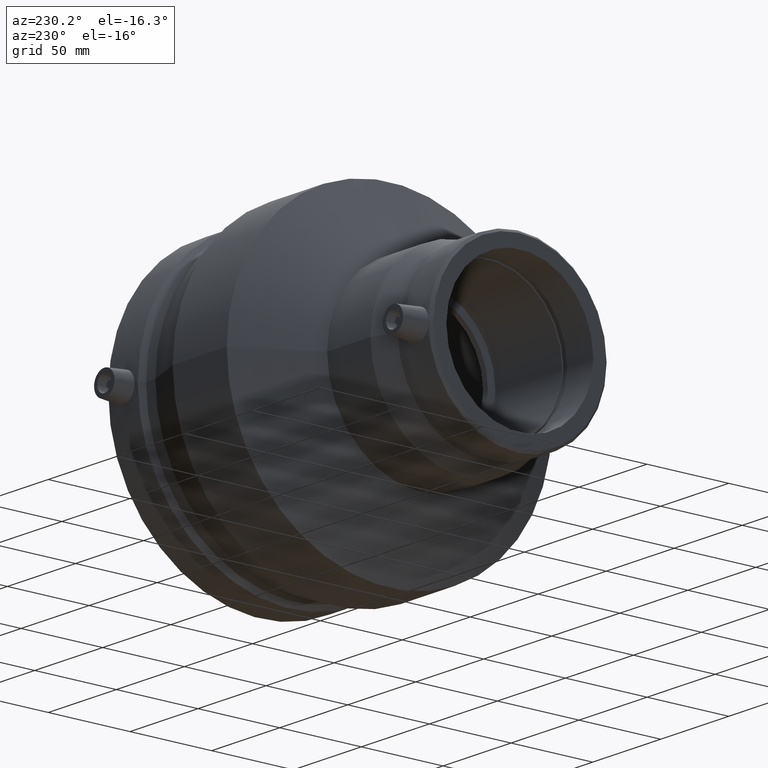
[diagram: clean part render]
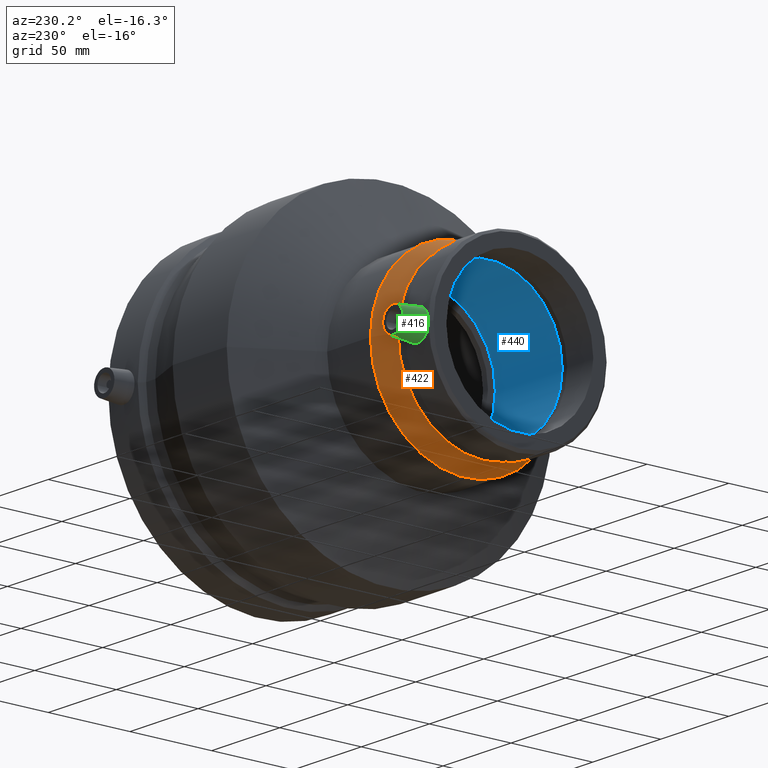
[diagram: same view with three faces highlighted in distinct colors, each labeled with its STEP entity id]
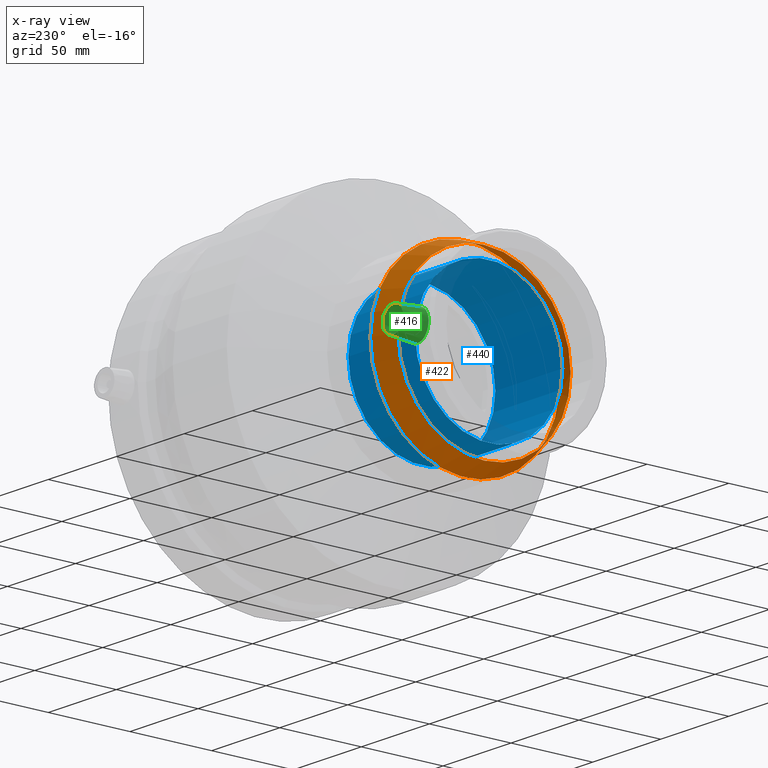
[diagram: x-ray of the same camera — body ghosted, the three highlighted faces saturated]
A machine part, auxiliary view with three faces highlighted in distinct colors.
The next image is the same camera in x-ray (body ghosted, the three faces saturated) — at least one of them is partly hidden behind the body in this view.
Their STEP definitions:

[orange] entity #422 — the highlighted conical surface has half-angle 20 deg.
#21=CONICAL_SURFACE('',#479,55.4422,20.);
#45=FACE_BOUND('',#156,.T.);
#100=FACE_OUTER_BOUND('',#155,.T.);
#155=EDGE_LOOP('',(#348));
#156=EDGE_LOOP('',(#349));
#215=CIRCLE('',#478,52.8844);
#216=CIRCLE('',#480,58.);
#254=VERTEX_POINT('',#794);
#255=VERTEX_POINT('',#797);
#293=EDGE_CURVE('',#254,#254,#215,.T.);
#294=EDGE_CURVE('',#255,#255,#216,.T.);
#348=ORIENTED_EDGE('',*,*,#293,.T.);
#349=ORIENTED_EDGE('',*,*,#294,.F.);
#422=ADVANCED_FACE('',(#100,#45),#21,.T.);
#478=AXIS2_PLACEMENT_3D('',#795,#588,#589);
#479=AXIS2_PLACEMENT_3D('',#796,#590,#591);
#480=AXIS2_PLACEMENT_3D('',#798,#592,#593);
#588=DIRECTION('center_axis',(1.,0.,0.));
#589=DIRECTION('ref_axis',(0.,0.,-1.));
#590=DIRECTION('center_axis',(1.,0.,0.));
#591=DIRECTION('ref_axis',(0.,1.,0.));
#592=DIRECTION('center_axis',(1.,0.,0.));
#593=DIRECTION('ref_axis',(0.,0.,-1.));
#794=CARTESIAN_POINT('',(-70.4,52.8844,0.));
#795=CARTESIAN_POINT('Origin',(-70.4,0.,0.));
#796=CARTESIAN_POINT('Origin',(-63.3725022565189,0.,0.));
#797=CARTESIAN_POINT('',(-56.3450045130379,58.,0.));
#798=CARTESIAN_POINT('Origin',(-56.3450045130379,0.,0.));

[blue] entity #440 — the highlighted cylindrical surface (bore or boss wall) has radius 45 mm, axis along (1, 0, 0).
#64=FACE_BOUND('',#193,.T.);
#81=CYLINDRICAL_SURFACE('',#515,45.);
#118=FACE_OUTER_BOUND('',#192,.T.);
#192=EDGE_LOOP('',(#385));
#193=EDGE_LOOP('',(#386));
#233=CIRCLE('',#514,45.);
#234=CIRCLE('',#516,45.);
#272=VERTEX_POINT('',#848);
#273=VERTEX_POINT('',#851);
#311=EDGE_CURVE('',#272,#272,#233,.T.);
#312=EDGE_CURVE('',#273,#273,#234,.T.);
#385=ORIENTED_EDGE('',*,*,#311,.T.);
#386=ORIENTED_EDGE('',*,*,#312,.F.);
#440=ADVANCED_FACE('',(#118,#64),#81,.F.);
#514=AXIS2_PLACEMENT_3D('',#849,#660,#661);
#515=AXIS2_PLACEMENT_3D('',#850,#662,#663);
#516=AXIS2_PLACEMENT_3D('',#852,#664,#665);
#660=DIRECTION('center_axis',(1.,0.,0.));
#661=DIRECTION('ref_axis',(0.,0.,-1.));
#662=DIRECTION('center_axis',(1.,0.,0.));
#663=DIRECTION('ref_axis',(0.,1.,0.));
#664=DIRECTION('center_axis',(1.,0.,0.));
#665=DIRECTION('ref_axis',(0.,0.,-1.));
#848=CARTESIAN_POINT('',(-24.5,45.,0.));
#849=CARTESIAN_POINT('Origin',(-24.5,0.,0.));
#850=CARTESIAN_POINT('Origin',(-49.0778,0.,0.));
#851=CARTESIAN_POINT('',(-73.6556,45.,0.));
#852=CARTESIAN_POINT('Origin',(-73.6556,0.,0.));

[green] entity #416 — the highlighted conical surface has half-angle 5 deg.
#16=B_SPLINE_CURVE_WITH_KNOTS('',3,(#745,#746,#747,#748,#749,#750,#751,
#752,#753,#754,#755,#756,#757,#758,#759,#760,#761,#762,#763,#764,#765,#766,
#767,#768,#769,#770,#771,#772,#773,#774,#775,#776,#777,#778),
 .UNSPECIFIED.,.T.,.F.,(4,2,2,2,2,2,2,2,2,2,2,2,2,2,2,2,4),(0.,0.332333741247595,
0.66466748249519,0.996440568725009,1.32821365495483,1.65998674118465,1.99175982741447,
2.32409356866206,2.65642730990966,2.98876105115725,3.32109479240485,3.65286787863466,
3.98464096486448,4.3164140510943,4.64818713732412,4.98052087857172,5.31285461981931),
 .UNSPECIFIED.);
#18=CONICAL_SURFACE('',#467,7.5,5.);
#38=FACE_BOUND('',#143,.T.);
#94=FACE_OUTER_BOUND('',#142,.T.);
#142=EDGE_LOOP('',(#335));
#143=EDGE_LOOP('',(#336));
#209=CIRCLE('',#466,7.5);
#247=VERTEX_POINT('',#741);
#248=VERTEX_POINT('',#744);
#286=EDGE_CURVE('',#247,#247,#209,.T.);
#287=EDGE_CURVE('',#248,#248,#16,.T.);
#335=ORIENTED_EDGE('',*,*,#286,.T.);
#336=ORIENTED_EDGE('',*,*,#287,.F.);
#416=ADVANCED_FACE('',(#94,#38),#18,.T.);
#466=AXIS2_PLACEMENT_3D('',#742,#564,#565);
#467=AXIS2_PLACEMENT_3D('',#743,#566,#567);
#564=DIRECTION('center_axis',(0.,-1.,0.));
#565=DIRECTION('ref_axis',(1.,0.,0.));
#566=DIRECTION('center_axis',(0.,-1.,0.));
#567=DIRECTION('ref_axis',(1.,0.,0.));
#741=CARTESIAN_POINT('',(-93.56,69.,9.18485099360515E-16));
#742=CARTESIAN_POINT('Origin',(-86.06,69.,0.));
#743=CARTESIAN_POINT('Origin',(-86.06,69.,0.));
#744=CARTESIAN_POINT('',(-86.06,53.8002314175975,-8.82980743917773));
#745=CARTESIAN_POINT('Ctrl Pts',(-86.06,53.8002314175975,-8.82980743917773));
#746=CARTESIAN_POINT('Ctrl Pts',(-84.952220862508,53.8002314175975,-8.82980743917773));
#747=CARTESIAN_POINT('Ctrl Pts',(-83.7729472365642,53.8385416765224,-8.60537039430469));
#748=CARTESIAN_POINT('Ctrl Pts',(-81.6088154801086,53.9757610206859,-7.69793399206916));
#749=CARTESIAN_POINT('Ctrl Pts',(-80.6237588182109,54.0725767138485,-7.01509277897696));
#750=CARTESIAN_POINT('Ctrl Pts',(-79.0726566950116,54.2530518909631,-5.44603835548629));
#751=CARTESIAN_POINT('Ctrl Pts',(-78.4018229272728,54.3485422744313,-4.45511903941445));
#752=CARTESIAN_POINT('Ctrl Pts',(-77.512041944967,54.4829361529317,-2.28512600912968));
#753=CARTESIAN_POINT('Ctrl Pts',(-77.2931641521446,54.52,-1.10591028743273));
#754=CARTESIAN_POINT('Ctrl Pts',(-77.2931641521446,54.52,1.10591028743273));
#755=CARTESIAN_POINT('Ctrl Pts',(-77.512041944967,54.4829361529317,2.28512600912968));
#756=CARTESIAN_POINT('Ctrl Pts',(-78.4018229272728,54.3485422744313,4.45511903941445));
#757=CARTESIAN_POINT('Ctrl Pts',(-79.0726566950116,54.2530518909631,5.44603835548629));
#758=CARTESIAN_POINT('Ctrl Pts',(-80.6237588182109,54.0725767138485,7.01509277897696));
#759=CARTESIAN_POINT('Ctrl Pts',(-81.6088154801086,53.9757610206859,7.69793399206916));
#760=CARTESIAN_POINT('Ctrl Pts',(-83.7729472365642,53.8385416765224,8.60537039430469));
#761=CARTESIAN_POINT('Ctrl Pts',(-84.952220862508,53.8002314175975,8.82980743917773));
#762=CARTESIAN_POINT('Ctrl Pts',(-87.167779137492,53.8002314175975,8.82980743917773));
#763=CARTESIAN_POINT('Ctrl Pts',(-88.3470527634358,53.8385416765224,8.60537039430471));
#764=CARTESIAN_POINT('Ctrl Pts',(-90.5111845198914,53.9757610206859,7.69793399206917));
#765=CARTESIAN_POINT('Ctrl Pts',(-91.4962411817891,54.0725767138485,7.01509277897697));
#766=CARTESIAN_POINT('Ctrl Pts',(-93.0473433049884,54.2530518909631,5.4460383554863));
#767=CARTESIAN_POINT('Ctrl Pts',(-93.7181770727272,54.3485422744313,4.45511903941446));
#768=CARTESIAN_POINT('Ctrl Pts',(-94.6079580550331,54.4829361529317,2.28512600912969));
#769=CARTESIAN_POINT('Ctrl Pts',(-94.8268358478554,54.52,1.10591028743273));
#770=CARTESIAN_POINT('Ctrl Pts',(-94.8268358478554,54.52,-1.10591028743273));
#771=CARTESIAN_POINT('Ctrl Pts',(-94.6079580550331,54.4829361529317,-2.28512600912969));
#772=CARTESIAN_POINT('Ctrl Pts',(-93.7181770727272,54.3485422744313,-4.45511903941446));
#773=CARTESIAN_POINT('Ctrl Pts',(-93.0473433049884,54.2530518909631,-5.44603835548629));
#774=CARTESIAN_POINT('Ctrl Pts',(-91.4962411817891,54.0725767138485,-7.01509277897697));
#775=CARTESIAN_POINT('Ctrl Pts',(-90.5111845198914,53.9757610206859,-7.69793399206917));
#776=CARTESIAN_POINT('Ctrl Pts',(-88.3470527634358,53.8385416765224,-8.6053703943047));
#777=CARTESIAN_POINT('Ctrl Pts',(-87.167779137492,53.8002314175975,-8.82980743917773));
#778=CARTESIAN_POINT('Ctrl Pts',(-86.06,53.8002314175975,-8.82980743917773));